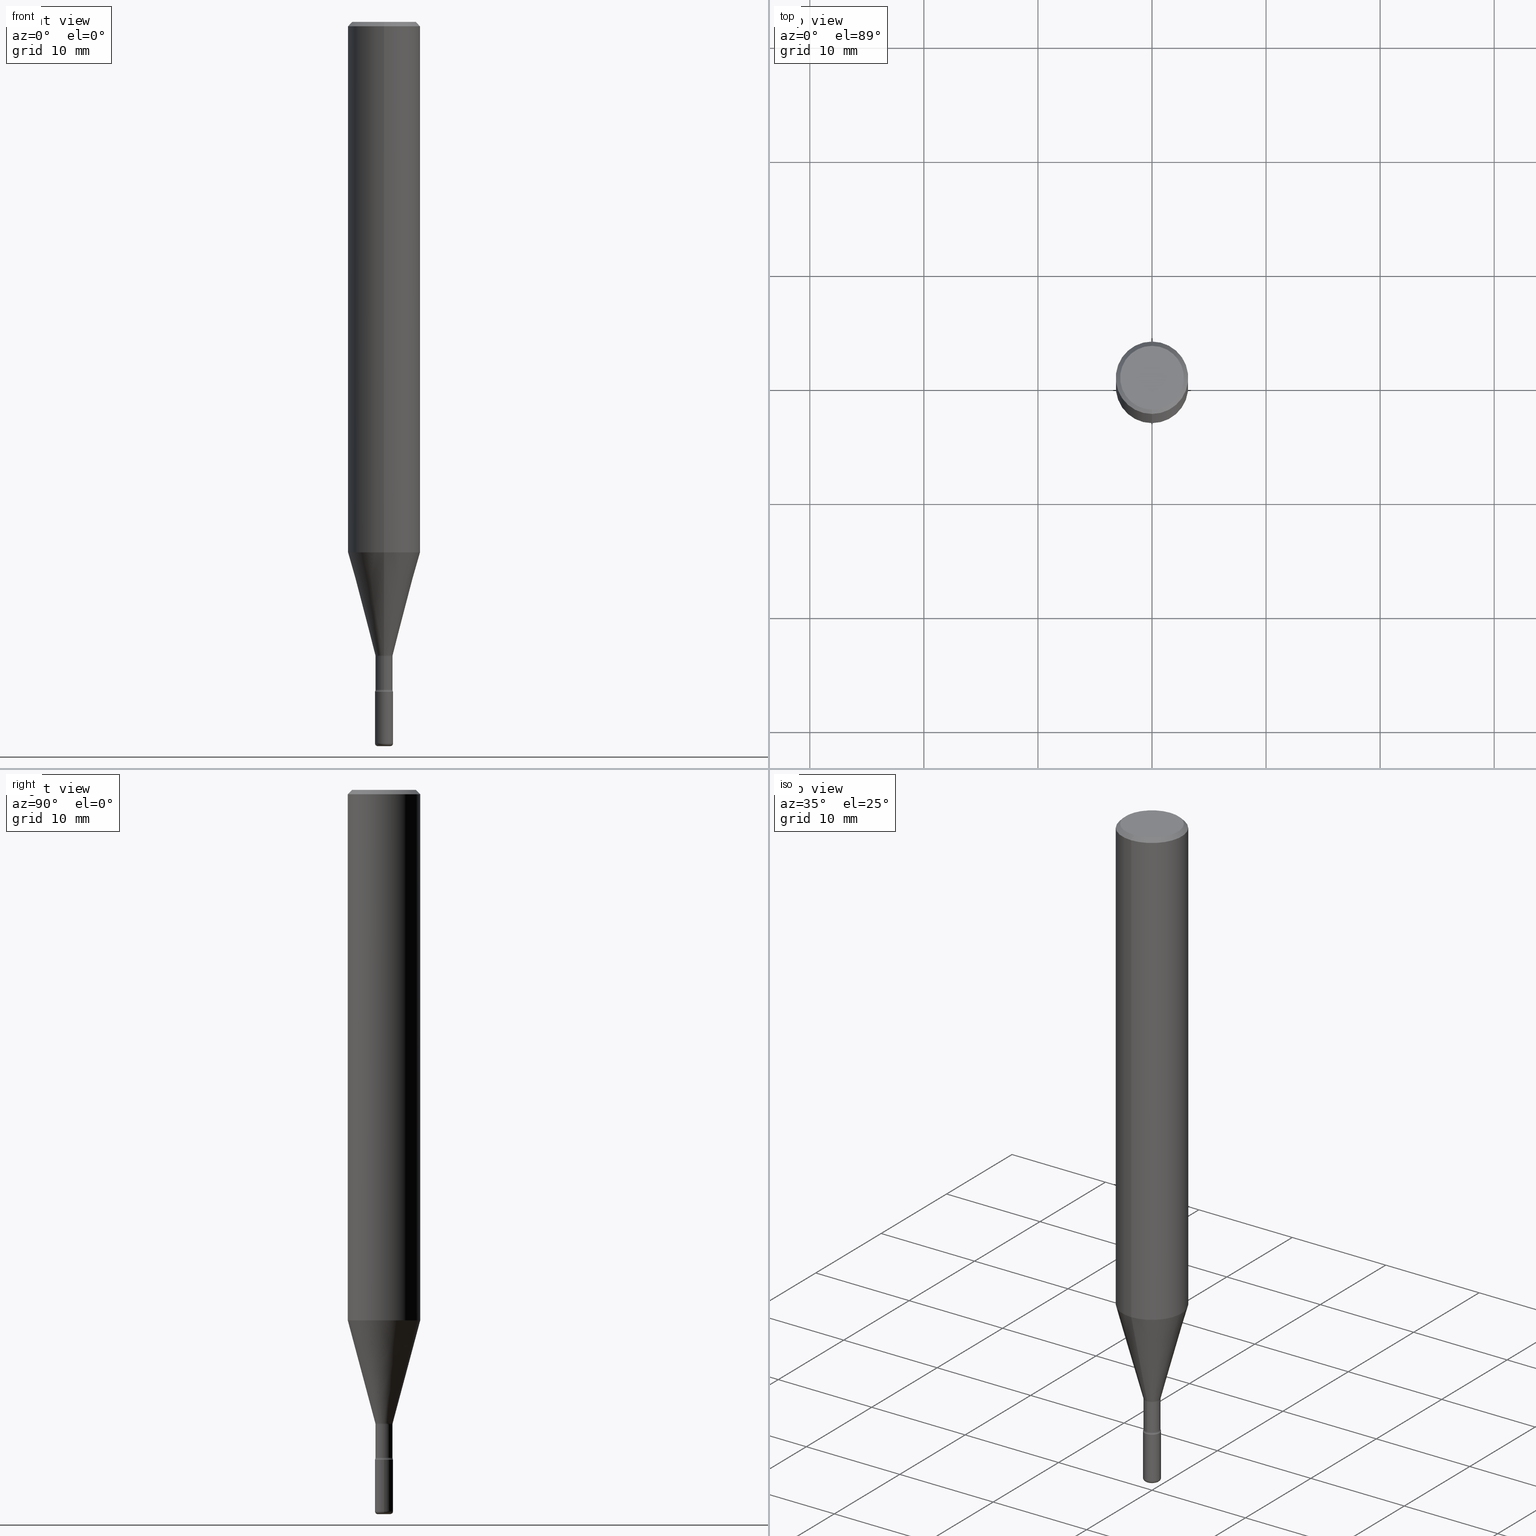
[diagram: canonical four-view strip — front | top / right | iso, engineering-drawing reading convention]
A machine part, canonical four-view strip (front | top / right | iso — engineering-drawing reading convention). The complete STEP part file that produces these views, byte-faithful:
ISO-10303-21;
HEADER;
FILE_DESCRIPTION (( 'STEP AP203' ),
    '1' );
FILE_NAME ('05287.STEP',
    '2024-03-06T20:01:47',
    ( '' ),
    ( '' ),
    'SwSTEP 2.0',
    'SolidWorks 2023',
    '' );
FILE_SCHEMA (( 'CONFIG_CONTROL_DESIGN' ));
ENDSEC;

DATA;
#1 = DIRECTION ( 'NONE',  ( -2.445468806185136597E-29, 3.491481338843145583E-15, 1.000000000000000000 ) ) ;
#2 = DIRECTION ( 'NONE',  ( -2.445452788277100287E-29, 3.491504277399136299E-15, 1.000000000000000000 ) ) ;
#3 = DATE_AND_TIME ( #314, #176 ) ;
#4 = EDGE_CURVE ( 'NONE', #197, #385, #112, .T. ) ;
#5 = CARTESIAN_POINT ( 'NONE',  ( -0.03125000000000000000, 2.220446049250313081E-16, -1.537167215704658057E-30 ) ) ;
#6 = CARTESIAN_POINT ( 'NONE',  ( 0.02124999999999999806, -8.877091304008698268E-15, -2.500000000000000000 ) ) ;
#7 = ORIENTED_EDGE ( 'NONE', *, *, #61, .T. ) ;
#8 = APPROVAL ( #435, 'UNSPECIFIED' ) ;
#9 = DIRECTION ( 'NONE',  ( 7.105427357601001859E-15, 1.000000000000000000, 0.000000000000000000 ) ) ;
#10 = CLOSED_SHELL ( 'NONE', ( #294, #504, #494, #441, #362, #93 ) ) ;
#11 = AXIS2_PLACEMENT_3D ( 'NONE', #299, #557, #565 ) ;
#12 = PLANE ( 'NONE',  #77 ) ;
#13 = CARTESIAN_POINT ( 'NONE',  ( 5.345986003927349393E-29, -7.632751320780443550E-15, -2.186092501787273434 ) ) ;
#14 = ORIENTED_EDGE ( 'NONE', *, *, #436, .T. ) ;
#15 = UNCERTAINTY_MEASURE_WITH_UNIT (LENGTH_MEASURE( 1.000000000000000082E-05 ), #202, 'distance_accuracy_value', 'NONE');
#16 = CARTESIAN_POINT ( 'NONE',  ( 5.653923879900035579E-29, -8.072304855405352780E-15, -2.312000000000000277 ) ) ;
#17 = DIRECTION ( 'NONE',  ( -2.445468806185136597E-29, 3.491481338843145583E-15, 1.000000000000000000 ) ) ;
#18 = TOROIDAL_SURFACE ( 'NONE', #250, 0.04440000000000000890, 0.01500000000000000291 ) ;
#19 = AXIS2_PLACEMENT_3D ( 'NONE', #290, #548, #550 ) ;
#20 = VECTOR ( 'NONE', #320, 39.37007874015748143 ) ;
#21 =( LENGTH_UNIT ( ) NAMED_UNIT ( * ) SI_UNIT ( $, .METRE. ) );
#22 = DIRECTION ( 'NONE',  ( 2.445452788277100287E-29, -3.491504277399136299E-15, -1.000000000000000000 ) ) ;
#23 = AXIS2_PLACEMENT_3D ( 'NONE', #532, #141, #454 ) ;
#24 = LOCAL_TIME ( 15, 1, 47.00000000000000000, #534 ) ;
#25 = LINE ( 'NONE', #343, #31 ) ;
#26 = DIRECTION ( 'NONE',  ( -2.445452788277100287E-29, 3.491504277399136299E-15, 1.000000000000000000 ) ) ;
#27 = ORIENTED_EDGE ( 'NONE', *, *, #552, .F. ) ;
#28 = ADVANCED_FACE ( 'NONE', ( #117 ), #390, .T. ) ;
#29 = CIRCLE ( 'NONE', #92, 0.03125000000000000000 ) ;
#30 = MANIFOLD_SOLID_BREP ( 'Body-Move/Copy2[2]', #262 ) ;
#31 = VECTOR ( 'NONE', #515, 39.37007874015748143 ) ;
#32 = AXIS2_PLACEMENT_3D ( 'NONE', #34, #430, #123 ) ;
#33 = EDGE_LOOP ( 'NONE', ( #219, #166, #279, #458 ) ) ;
#34 = CARTESIAN_POINT ( 'NONE',  ( 0.000000000000000000, 0.000000000000000000, 0.000000000000000000 ) ) ;
#35 = ADVANCED_FACE ( 'NONE', ( #523 ), #300, .T. ) ;
#36 = DIRECTION ( 'NONE',  ( -2.445452788277100287E-29, 3.491504277399136299E-15, 1.000000000000000000 ) ) ;
#37 = ORIENTED_EDGE ( 'NONE', *, *, #451, .T. ) ;
#38 = DIRECTION ( 'NONE',  ( -6.982962677686267499E-15, -1.000000000000000000, 0.000000000000000000 ) ) ;
#39 = FACE_OUTER_BOUND ( 'NONE', #291, .T. ) ;
#40 = EDGE_CURVE ( 'NONE', #448, #511, #527, .T. ) ;
#41 = VERTEX_POINT ( 'NONE', #480 ) ;
#42 = ORIENTED_EDGE ( 'NONE', *, *, #384, .T. ) ;
#43 = AXIS2_PLACEMENT_3D ( 'NONE', #50, #229, #408 ) ;
#44 = EDGE_CURVE ( 'NONE', #522, #469, #174, .T. ) ;
#45 = CIRCLE ( 'NONE', #466, 0.01000000000000035930 ) ;
#46 = DIRECTION ( 'NONE',  ( -6.982962677686265922E-15, -1.000000000000000000, 3.491504277399135904E-15 ) ) ;
#47 = PERSON_AND_ORGANIZATION ( #165, #492 ) ;
#48 = CARTESIAN_POINT ( 'NONE',  ( 2.088995643135258268E-16, 0.02939999999999235586, -2.189974787463811357 ) ) ;
#49 = ORIENTED_EDGE ( 'NONE', *, *, #44, .T. ) ;
#50 = CARTESIAN_POINT ( 'NONE',  ( 6.089217327400989947E-29, -8.693788533719431716E-15, -2.489999999999999769 ) ) ;
#51 = CARTESIAN_POINT ( 'NONE',  ( 0.03125000000000000000, -8.290522439083049403E-15, -2.312000000000000277 ) ) ;
#52 = SHAPE_DEFINITION_REPRESENTATION ( #456, #553 ) ;
#53 = ORIENTED_EDGE ( 'NONE', *, *, #150, .T. ) ;
#54 = LINE ( 'NONE', #531, #20 ) ;
#55 = CARTESIAN_POINT ( 'NONE',  ( -8.728703347107832402E-16, -0.1250000000000000000, 9.145114335661381006E-16 ) ) ;
#56 = CARTESIAN_POINT ( 'NONE',  ( 5.636276217332838897E-29, -8.047108670374602595E-15, -2.304783525791634702 ) ) ;
#57 = AXIS2_PLACEMENT_3D ( 'NONE', #418, #68, #347 ) ;
#58 = AXIS2_PLACEMENT_3D ( 'NONE', #566, #261, #434 ) ;
#59 = LINE ( 'NONE', #55, #196 ) ;
#60 = AXIS2_PLACEMENT_3D ( 'NONE', #255, #36, #346 ) ;
#61 = EDGE_CURVE ( 'NONE', #81, #74, #410, .T. ) ;
#62 = CARTESIAN_POINT ( 'NONE',  ( -2.052991027239226467E-16, -0.02940000000000764571, -2.189974787463811357 ) ) ;
#63 = CARTESIAN_POINT ( 'NONE',  ( 3.668179182415653390E-31, -5.237256416098709156E-17, -0.01500000000000001332 ) ) ;
#64 = ORIENTED_EDGE ( 'NONE', *, *, #248, .T. ) ;
#65 = LENGTH_MEASURE_WITH_UNIT ( LENGTH_MEASURE( 0.02539999999999999897 ), #21 );
#66 = DIRECTION ( 'NONE',  ( -2.445468806185136597E-29, 3.491481338843145583E-15, 1.000000000000000000 ) ) ;
#67 = ORIENTED_EDGE ( 'NONE', *, *, #140, .T. ) ;
#68 = DIRECTION ( 'NONE',  ( -2.445468806185136597E-29, 3.491481338843145583E-15, 1.000000000000000000 ) ) ;
#69 = DIRECTION ( 'NONE',  ( -6.982962677686265922E-15, -1.000000000000000000, 3.491504277399136299E-15 ) ) ;
#70 = ORIENTED_EDGE ( 'NONE', *, *, #217, .T. ) ;
#71 = CIRCLE ( 'NONE', #298, 0.1250000000000000000 ) ;
#72 = AXIS2_PLACEMENT_3D ( 'NONE', #13, #225, #318 ) ;
#73 = EDGE_LOOP ( 'NONE', ( #105, #350 ) ) ;
#74 = VERTEX_POINT ( 'NONE', #264 ) ;
#75 = ORIENTED_EDGE ( 'NONE', *, *, #476, .F. ) ;
#76 = CYLINDRICAL_SURFACE ( 'NONE', #58, 0.03125000000000000000 ) ;
#77 = AXIS2_PLACEMENT_3D ( 'NONE', #366, #537, #191 ) ;
#78 = AXIS2_PLACEMENT_3D ( 'NONE', #308, #311, #484 ) ;
#79 = EDGE_LOOP ( 'NONE', ( #14, #94 ) ) ;
#80 = AXIS2_PLACEMENT_3D ( 'NONE', #568, #352, #82 ) ;
#81 = VERTEX_POINT ( 'NONE', #167 ) ;
#82 = DIRECTION ( 'NONE',  ( -6.982962677686265133E-15, -1.000000000000000000, 0.000000000000000000 ) ) ;
#83 = PERSON_AND_ORGANIZATION_ROLE ( 'creator' ) ;
#84 = LINE ( 'NONE', #89, #465 ) ;
#85 = DIRECTION ( 'NONE',  ( 6.982962677686265922E-15, 1.000000000000000000, -3.483106191921935554E-15 ) ) ;
#86 = PRODUCT_DEFINITION_FORMATION_WITH_SPECIFIED_SOURCE ( 'ANY', '', #541, .NOT_KNOWN. ) ;
#87 = CARTESIAN_POINT ( 'NONE',  ( 6.089217327400989947E-29, -8.693788533719431716E-15, -2.489999999999999769 ) ) ;
#88 = DIRECTION ( 'NONE',  ( 7.105427357601001859E-15, 1.000000000000000000, 0.000000000000000000 ) ) ;
#89 = CARTESIAN_POINT ( 'NONE',  ( 2.088995643134694479E-16, 0.02940000000000000252, 3.754231731357114148E-16 ) ) ;
#90 = DIRECTION ( 'NONE',  ( -6.982962677686265922E-15, -1.000000000000000000, 3.491504277399135904E-15 ) ) ;
#91 = LINE ( 'NONE', #281, #440 ) ;
#92 = AXIS2_PLACEMENT_3D ( 'NONE', #401, #95, #368 ) ;
#93 = ADVANCED_FACE ( 'NONE', ( #306 ), #76, .T. ) ;
#94 = ORIENTED_EDGE ( 'NONE', *, *, #467, .T. ) ;
#95 = DIRECTION ( 'NONE',  ( -2.445468806185136597E-29, 3.491481338843145583E-15, 1.000000000000000000 ) ) ;
#96 = DIRECTION ( 'NONE',  ( -4.851104656540962697E-15, -0.7071067811865497932, -0.7071067811865452413 ) ) ;
#97 = CC_DESIGN_APPROVAL ( #353, ( #86 ) ) ;
#98 = CIRCLE ( 'NONE', #11, 0.1250000000000000000 ) ;
#99 = ADVANCED_FACE ( 'NONE', ( #39 ), #270, .T. ) ;
#100 = FACE_OUTER_BOUND ( 'NONE', #328, .T. ) ;
#101 = DIRECTION ( 'NONE',  ( 6.982962677686265922E-15, 1.000000000000000000, -3.491504277399136299E-15 ) ) ;
#102 = VERTEX_POINT ( 'NONE', #6 ) ;
#103 = DIRECTION ( 'NONE',  ( -6.982962677686265922E-15, -1.000000000000000000, 3.491504277399135904E-15 ) ) ;
#104 = CIRCLE ( 'NONE', #266, 0.02940000000000000946 ) ;
#105 = ORIENTED_EDGE ( 'NONE', *, *, #451, .F. ) ;
#106 = VECTOR ( 'NONE', #571, 39.37007874015748143 ) ;
#107 = FACE_OUTER_BOUND ( 'NONE', #374, .T. ) ;
#108 = CIRCLE ( 'NONE', #433, 0.03125000000000000000 ) ;
#109 = ADVANCED_FACE ( 'NONE', ( #234 ), #490, .T. ) ;
#110 = ORIENTED_EDGE ( 'NONE', *, *, #538, .F. ) ;
#111 = AXIS2_PLACEMENT_3D ( 'NONE', #307, #391, #118 ) ;
#112 = CIRCLE ( 'NONE', #80, 0.02939999999999999905 ) ;
#113 = ORIENTED_EDGE ( 'NONE', *, *, #510, .T. ) ;
#114 = EDGE_LOOP ( 'NONE', ( #7, #201, #425, #518 ) ) ;
#115 = ADVANCED_FACE ( 'NONE', ( #192 ), #383, .F. ) ;
#116 = AXIS2_PLACEMENT_3D ( 'NONE', #129, #313, #442 ) ;
#117 = FACE_OUTER_BOUND ( 'NONE', #121, .T. ) ;
#118 = DIRECTION ( 'NONE',  ( -6.982962677686266711E-15, -1.000000000000000000, 0.000000000000000000 ) ) ;
#119 = DIRECTION ( 'NONE',  ( -6.982962677686265922E-15, -1.000000000000000000, 0.000000000000000000 ) ) ;
#120 = COORDINATED_UNIVERSAL_TIME_OFFSET ( 5, 0, .BEHIND. ) ;
#121 = EDGE_LOOP ( 'NONE', ( #271, #70, #193, #172 ) ) ;
#122 = CARTESIAN_POINT ( 'NONE',  ( -1.169113584055446105E-44, 1.669184350826100908E-30, 4.780733988912460139E-16 ) ) ;
#123 = DIRECTION ( 'NONE',  ( 1.000000000000000000, 0.000000000000000000, 0.000000000000000000 ) ) ;
#124 = VERTEX_POINT ( 'NONE', #489 ) ;
#125 = ORIENTED_EDGE ( 'NONE', *, *, #327, .T. ) ;
#126 = CIRCLE ( 'NONE', #205, 0.03125000000000000000 ) ;
#127 = CIRCLE ( 'NONE', #319, 0.03125000000000000000 ) ;
#128 = DIRECTION ( 'NONE',  ( -6.982962677686265922E-15, -1.000000000000000000, 3.491504277399137482E-15 ) ) ;
#129 = CARTESIAN_POINT ( 'NONE',  ( -1.169113584055446105E-44, 1.669184350826100908E-30, 4.780733988912460139E-16 ) ) ;
#130 = SECURITY_CLASSIFICATION_LEVEL ( 'unclassified' ) ;
#131 = DIRECTION ( 'NONE',  ( 2.438088387897960049E-29, -3.491481338843145188E-15, -1.000000000000000000 ) ) ;
#132 = CIRCLE ( 'NONE', #212, 0.02124999999999999806 ) ;
#133 = DIRECTION ( 'NONE',  ( -2.445452788277100287E-29, 3.491504277399136299E-15, 1.000000000000000000 ) ) ;
#134 = COORDINATED_UNIVERSAL_TIME_OFFSET ( 5, 0, .BEHIND. ) ;
#135 = EDGE_LOOP ( 'NONE', ( #371, #67, #125, #470 ) ) ;
#136 = FACE_OUTER_BOUND ( 'NONE', #275, .T. ) ;
#137 = DIRECTION ( 'NONE',  ( -2.445468806185136597E-29, 3.491481338843145583E-15, 1.000000000000000000 ) ) ;
#138 = APPROVAL_DATE_TIME ( #403, #8 ) ;
#139 = DIRECTION ( 'NONE',  ( 1.000000000000000000, -7.105427357601001070E-15, 4.926315789458373769E-29 ) ) ;
#140 = EDGE_CURVE ( 'NONE', #124, #253, #163, .T. ) ;
#141 = DIRECTION ( 'NONE',  ( -2.445452788277100287E-29, 3.491504277399136299E-15, 1.000000000000000000 ) ) ;
#142 = DIRECTION ( 'NONE',  ( -2.445452788277100006E-29, 3.491504277399136299E-15, 1.000000000000000000 ) ) ;
#143 = EDGE_CURVE ( 'NONE', #237, #198, #501, .T. ) ;
#144 = ORIENTED_EDGE ( 'NONE', *, *, #239, .F. ) ;
#145 = DIRECTION ( 'NONE',  ( -6.982962677686265922E-15, -1.000000000000000000, 3.483106191921935554E-15 ) ) ;
#146 = AXIS2_PLACEMENT_3D ( 'NONE', #87, #137, #415 ) ;
#147 = FACE_OUTER_BOUND ( 'NONE', #400, .T. ) ;
#148 = VERTEX_POINT ( 'NONE', #405 ) ;
#149 = DIRECTION ( 'NONE',  ( -2.445452788277100287E-29, 3.491504277399136299E-15, 1.000000000000000000 ) ) ;
#150 = EDGE_CURVE ( 'NONE', #253, #124, #252, .T. ) ;
#151 = APPROVAL ( #208, 'UNSPECIFIED' ) ;
#152 = APPLICATION_CONTEXT ( 'configuration controlled 3d designs of mechanical parts and assemblies' ) ;
#153 = CYLINDRICAL_SURFACE ( 'NONE', #184, 0.1250000000000000000 ) ;
#154 = TOROIDAL_SURFACE ( 'NONE', #43, 0.02124999999999999806, 0.01000000000000035583 ) ;
#155 = AXIS2_PLACEMENT_3D ( 'NONE', #388, #477, #119 ) ;
#156 = ORIENTED_EDGE ( 'NONE', *, *, #40, .T. ) ;
#157 = ORIENTED_EDGE ( 'NONE', *, *, #567, .T. ) ;
#158 = ORIENTED_EDGE ( 'NONE', *, *, #316, .F. ) ;
#159 = DIRECTION ( 'NONE',  ( -1.000000000000000000, 6.982962677686265922E-15, -4.883557194083112340E-29 ) ) ;
#160 = AXIS2_PLACEMENT_3D ( 'NONE', #402, #2, #181 ) ;
#161 = CONICAL_SURFACE ( 'NONE', #269, 0.1250000000000000000, 0.7853981633974480570 ) ;
#162 = ORIENTED_EDGE ( 'NONE', *, *, #222, .F. ) ;
#163 = CIRCLE ( 'NONE', #146, 0.03125000000000000000 ) ;
#164 = DIRECTION ( 'NONE',  ( -2.445452788277100287E-29, 3.491504277399136299E-15, 1.000000000000000000 ) ) ;
#165 = PERSON ( 'UNSPECIFIED', 'UNSPECIFIED', 'UNSPECIFIED', ('UNSPECIFIED'), ('UNSPECIFIED'), ('UNSPECIFIED') ) ;
#166 = ORIENTED_EDGE ( 'NONE', *, *, #239, .T. ) ;
#167 = CARTESIAN_POINT ( 'NONE',  ( -2.088681829733692852E-16, -0.02991111260567161020, -2.186092501787273434 ) ) ;
#168 = CC_DESIGN_DATE_AND_TIME_ASSIGNMENT ( #3, #182, ( #258 ) ) ;
#169 = ORIENTED_EDGE ( 'NONE', *, *, #552, .T. ) ;
#170 = AXIS2_PLACEMENT_3D ( 'NONE', #503, #463, #101 ) ;
#171 = ORIENTED_EDGE ( 'NONE', *, *, #379, .F. ) ;
#172 = ORIENTED_EDGE ( 'NONE', *, *, #384, .F. ) ;
#173 = PERSON_AND_ORGANIZATION ( #165, #492 ) ;
#174 = CIRCLE ( 'NONE', #78, 0.1100000000000000006 ) ;
#175 = ORIENTED_EDGE ( 'NONE', *, *, #485, .T. ) ;
#176 = LOCAL_TIME ( 15, 1, 47.00000000000000000, #268 ) ;
#177 = CARTESIAN_POINT ( 'NONE',  ( 5.355515029074675040E-29, -7.646256102966880263E-15, -2.189974787463811357 ) ) ;
#178 = ADVANCED_FACE ( 'NONE', ( #367 ), #321, .F. ) ;
#179 = APPROVAL_DATE_TIME ( #259, #151 ) ;
#180 = CARTESIAN_POINT ( 'NONE',  ( -8.061085147381546509E-16, -0.1100000000000000006, 3.705968789644431763E-16 ) ) ;
#181 = DIRECTION ( 'NONE',  ( -6.982962677686265922E-15, -1.000000000000000000, 4.370956789862821150E-15 ) ) ;
#182 = DATE_TIME_ROLE ( 'creation_date' ) ;
#183 = ORIENTED_EDGE ( 'NONE', *, *, #4, .F. ) ;
#184 = AXIS2_PLACEMENT_3D ( 'NONE', #417, #373, #69 ) ;
#185 = CARTESIAN_POINT ( 'NONE',  ( 1.483879569008942895E-16, 0.02124999999999126893, -2.500000000000000000 ) ) ;
#186 = CYLINDRICAL_SURFACE ( 'NONE', #116, 0.02940000000000000252 ) ;
#187 = VERTEX_POINT ( 'NONE', #364 ) ;
#188 = VECTOR ( 'NONE', #358, 39.37007874015748854 ) ;
#189 = LINE ( 'NONE', #232, #188 ) ;
#190 = CARTESIAN_POINT ( 'NONE',  ( 8.881784197001251337E-16, 0.1250000000000000000, 4.163536421635405055E-17 ) ) ;
#191 = DIRECTION ( 'NONE',  ( 1.000000000000000000, -6.982962677686265922E-15, 4.876176775795935793E-29 ) ) ;
#192 = FACE_OUTER_BOUND ( 'NONE', #282, .T. ) ;
#193 = ORIENTED_EDGE ( 'NONE', *, *, #206, .F. ) ;
#194 = DIRECTION ( 'NONE',  ( -2.445468806185136597E-29, 3.491481338843145583E-15, 1.000000000000000000 ) ) ;
#195 = FACE_OUTER_BOUND ( 'NONE', #411, .T. ) ;
#196 = VECTOR ( 'NONE', #439, 39.37007874015748143 ) ;
#197 = VERTEX_POINT ( 'NONE', #48 ) ;
#198 = VERTEX_POINT ( 'NONE', #539 ) ;
#199 = LINE ( 'NONE', #334, #323 ) ;
#200 = CC_DESIGN_SECURITY_CLASSIFICATION ( #233, ( #86 ) ) ;
#201 = ORIENTED_EDGE ( 'NONE', *, *, #476, .T. ) ;
#202 =( CONVERSION_BASED_UNIT ( 'INCH', #65 ) LENGTH_UNIT ( ) NAMED_UNIT ( #491 ) );
#203 = CYLINDRICAL_SURFACE ( 'NONE', #513, 0.03125000000000000000 ) ;
#204 =( GEOMETRIC_REPRESENTATION_CONTEXT ( 3 ) GLOBAL_UNCERTAINTY_ASSIGNED_CONTEXT ( ( #15 ) ) GLOBAL_UNIT_ASSIGNED_CONTEXT ( ( #202, #215, #472 ) ) REPRESENTATION_CONTEXT ( 'NONE', 'WORKASPACE' ) );
#205 = AXIS2_PLACEMENT_3D ( 'NONE', #243, #164, #560 ) ;
#206 = EDGE_CURVE ( 'NONE', #385, #197, #570, .T. ) ;
#207 = ORIENTED_EDGE ( 'NONE', *, *, #412, .T. ) ;
#208 = APPROVAL_STATUS ( 'not_yet_approved' ) ;
#209 = DIRECTION ( 'NONE',  ( -2.445452788277100287E-29, 3.491504277399136299E-15, 1.000000000000000000 ) ) ;
#210 = EDGE_CURVE ( 'NONE', #74, #81, #365, .T. ) ;
#211 = APPLICATION_PROTOCOL_DEFINITION ( 'international standard', 'config_control_design', 1994, #152 ) ;
#212 = AXIS2_PLACEMENT_3D ( 'NONE', #293, #17, #419 ) ;
#213 = AXIS2_PLACEMENT_3D ( 'NONE', #276, #194, #449 ) ;
#214 = ORIENTED_EDGE ( 'NONE', *, *, #526, .F. ) ;
#215 =( NAMED_UNIT ( * ) PLANE_ANGLE_UNIT ( ) SI_UNIT ( $, .RADIAN. ) );
#216 = PRODUCT_RELATED_PRODUCT_CATEGORY ( 'detail', '', ( #541 ) ) ;
#217 = EDGE_CURVE ( 'NONE', #448, #197, #84, .T. ) ;
#218 = CARTESIAN_POINT ( 'NONE',  ( 5.345986003927349393E-29, -7.632751320780443550E-15, -2.186092501787273434 ) ) ;
#219 = ORIENTED_EDGE ( 'NONE', *, *, #210, .F. ) ;
#220 = AXIS2_PLACEMENT_3D ( 'NONE', #63, #22, #236 ) ;
#221 = ORIENTED_EDGE ( 'NONE', *, *, #519, .T. ) ;
#222 = EDGE_CURVE ( 'NONE', #469, #148, #91, .T. ) ;
#223 = DIRECTION ( 'NONE',  ( -6.982962677686265922E-15, -1.000000000000000000, 0.000000000000000000 ) ) ;
#224 = DIRECTION ( 'NONE',  ( -1.000000000000000000, 7.105427357600962416E-15, 0.000000000000000000 ) ) ;
#225 = DIRECTION ( 'NONE',  ( -2.445452788277100287E-29, 3.491504277399136299E-15, 1.000000000000000000 ) ) ;
#226 = CARTESIAN_POINT ( 'NONE',  ( -2.088681829733692852E-16, -0.02991111260567161020, -2.186092501787273434 ) ) ;
#227 = FACE_OUTER_BOUND ( 'NONE', #507, .T. ) ;
#228 = PERSON_AND_ORGANIZATION ( #165, #492 ) ;
#229 = DIRECTION ( 'NONE',  ( -2.445468806185136597E-29, 3.491481338843145583E-15, 1.000000000000000000 ) ) ;
#230 = CARTESIAN_POINT ( 'NONE',  ( -8.728703347107386696E-16, -0.1250000000000064115, -1.831215942796415863 ) ) ;
#231 = EDGE_CURVE ( 'NONE', #237, #148, #59, .T. ) ;
#232 = CARTESIAN_POINT ( 'NONE',  ( 2.125312378046224579E-16, 0.02991111260565634464, -2.186092501787273434 ) ) ;
#233 = SECURITY_CLASSIFICATION ( '', '', #130 ) ;
#234 = FACE_OUTER_BOUND ( 'NONE', #114, .T. ) ;
#235 = CARTESIAN_POINT ( 'NONE',  ( 3.668179182415653390E-31, -5.237256416098709156E-17, -0.01500000000000001332 ) ) ;
#236 = DIRECTION ( 'NONE',  ( 6.982962677686265922E-15, 1.000000000000000000, -3.483106191921935554E-15 ) ) ;
#237 = VERTEX_POINT ( 'NONE', #230 ) ;
#238 = CARTESIAN_POINT ( 'NONE',  ( 2.220446049250877609E-16, 0.03124999999999192313, -2.312000000000000277 ) ) ;
#239 = EDGE_CURVE ( 'NONE', #74, #197, #292, .T. ) ;
#240 = DIRECTION ( 'NONE',  ( 1.000000000000000000, -6.982962677686266711E-15, 4.876176775795935793E-29 ) ) ;
#241 = AXIS2_PLACEMENT_3D ( 'NONE', #461, #26, #103 ) ;
#242 = CIRCLE ( 'NONE', #213, 0.02124999999999999806 ) ;
#243 = CARTESIAN_POINT ( 'NONE',  ( 5.653886846496656107E-29, -8.072357889346804703E-15, -2.312000000000000277 ) ) ;
#244 = FACE_OUTER_BOUND ( 'NONE', #263, .T. ) ;
#245 = APPROVAL_PERSON_ORGANIZATION ( #389, #151, #386 ) ;
#246 = ORIENTED_EDGE ( 'NONE', *, *, #412, .F. ) ;
#247 = VERTEX_POINT ( 'NONE', #51 ) ;
#248 = EDGE_CURVE ( 'NONE', #198, #187, #398, .T. ) ;
#249 = ORIENTED_EDGE ( 'NONE', *, *, #217, .F. ) ;
#250 = AXIS2_PLACEMENT_3D ( 'NONE', #56, #289, #90 ) ;
#251 = CC_DESIGN_PERSON_AND_ORGANIZATION_ASSIGNMENT ( #443, #393, ( #233 ) ) ;
#252 = CIRCLE ( 'NONE', #473, 0.03125000000000000000 ) ;
#253 = VERTEX_POINT ( 'NONE', #529 ) ;
#254 = PERSON_AND_ORGANIZATION ( #165, #492 ) ;
#255 = CARTESIAN_POINT ( 'NONE',  ( -1.169113584055446105E-44, 1.669184350826100908E-30, 4.780733988912460139E-16 ) ) ;
#256 = DIRECTION ( 'NONE',  ( -6.982962677686266711E-15, -1.000000000000000000, 3.491481338843145583E-15 ) ) ;
#257 = ORIENTED_EDGE ( 'NONE', *, *, #349, .F. ) ;
#258 = PRODUCT_DEFINITION ( 'UNKNOWN', '', #86, #558 ) ;
#259 = DATE_AND_TIME ( #305, #444 ) ;
#260 = VECTOR ( 'NONE', #363, 39.37007874015748143 ) ;
#261 = DIRECTION ( 'NONE',  ( -2.445468806185136597E-29, 3.491481338843145583E-15, 1.000000000000000000 ) ) ;
#262 = CLOSED_SHELL ( 'NONE', ( #303, #28, #369, #312, #344, #109, #99, #35, #457, #361, #178, #296, #278, #115 ) ) ;
#263 = EDGE_LOOP ( 'NONE', ( #246, #158, #169, #113 ) ) ;
#264 = CARTESIAN_POINT ( 'NONE',  ( 5.503548287523965372E-16, 0.02991111260565634811, -2.186092501787273434 ) ) ;
#265 = PERSON_AND_ORGANIZATION_ROLE ( 'creator' ) ;
#266 = AXIS2_PLACEMENT_3D ( 'NONE', #377, #149, #380 ) ;
#267 = DIRECTION ( 'NONE',  ( 1.000000000000000000, -7.105427357601001070E-15, 4.926315789458373769E-29 ) ) ;
#268 = COORDINATED_UNIVERSAL_TIME_OFFSET ( 5, 0, .BEHIND. ) ;
#269 = AXIS2_PLACEMENT_3D ( 'NONE', #235, #272, #85 ) ;
#270 = CONICAL_SURFACE ( 'NONE', #455, 0.02991111260566397742, 0.2617993877991499629 ) ;
#271 = ORIENTED_EDGE ( 'NONE', *, *, #316, .T. ) ;
#272 = DIRECTION ( 'NONE',  ( 2.445452788277100287E-29, -3.491504277399136299E-15, -1.000000000000000000 ) ) ;
#273 = DIRECTION ( 'NONE',  ( -2.445468806185136597E-29, 3.491481338843145583E-15, 1.000000000000000000 ) ) ;
#274 = DATE_AND_TIME ( #351, #355 ) ;
#275 = EDGE_LOOP ( 'NONE', ( #471, #207, #535, #27 ) ) ;
#276 = CARTESIAN_POINT ( 'NONE',  ( 6.113672015462842613E-29, -8.728703347107864943E-15, -2.500000000000000000 ) ) ;
#277 = CARTESIAN_POINT ( 'NONE',  ( 2.182175836777523369E-16, 0.03124999999999192660, -2.312000000000000277 ) ) ;
#278 = ADVANCED_FACE ( 'NONE', ( #227 ), #186, .T. ) ;
#279 = ORIENTED_EDGE ( 'NONE', *, *, #4, .T. ) ;
#280 = LINE ( 'NONE', #226, #543 ) ;
#281 = CARTESIAN_POINT ( 'NONE',  ( -8.575622497214409523E-16, -0.1250000000000000555, -0.01499999999999957791 ) ) ;
#282 = EDGE_LOOP ( 'NONE', ( #144, #338, #221, #516 ) ) ;
#283 = AXIS2_PLACEMENT_3D ( 'NONE', #177, #133, #46 ) ;
#284 = FACE_OUTER_BOUND ( 'NONE', #73, .T. ) ;
#285 = AXIS2_PLACEMENT_3D ( 'NONE', #428, #256, #478 ) ;
#286 = FACE_OUTER_BOUND ( 'NONE', #33, .T. ) ;
#287 = AXIS2_PLACEMENT_3D ( 'NONE', #505, #159, #38 ) ;
#288 = EDGE_CURVE ( 'NONE', #198, #237, #533, .T. ) ;
#289 = DIRECTION ( 'NONE',  ( -2.445452788277100287E-29, 3.491504277399136299E-15, 1.000000000000000000 ) ) ;
#290 = CARTESIAN_POINT ( 'NONE',  ( 5.636276217332838897E-29, -8.047108670374602595E-15, -2.304783525791634702 ) ) ;
#291 = EDGE_LOOP ( 'NONE', ( #75, #559, #381, #437 ) ) ;
#292 = CIRCLE ( 'NONE', #315, 0.01500000000000002720 ) ;
#293 = CARTESIAN_POINT ( 'NONE',  ( 6.113672015462842613E-29, -8.728703347107864943E-15, -2.500000000000000000 ) ) ;
#294 = ADVANCED_FACE ( 'NONE', ( #359 ), #203, .T. ) ;
#295 = ORIENTED_EDGE ( 'NONE', *, *, #140, .F. ) ;
#296 = ADVANCED_FACE ( 'NONE', ( #244 ), #372, .F. ) ;
#297 = ORIENTED_EDGE ( 'NONE', *, *, #248, .F. ) ;
#298 = AXIS2_PLACEMENT_3D ( 'NONE', #544, #462, #145 ) ;
#299 = CARTESIAN_POINT ( 'NONE',  ( 3.668179182415653390E-31, -5.237256416098709156E-17, -0.01500000000000001332 ) ) ;
#300 = CYLINDRICAL_SURFACE ( 'NONE', #60, 0.1250000000000000000 ) ;
#301 = CC_DESIGN_APPROVAL ( #151, ( #258 ) ) ;
#302 = DIRECTION ( 'NONE',  ( -6.982962677686265922E-15, -1.000000000000000000, 0.000000000000000000 ) ) ;
#303 = ADVANCED_FACE ( 'NONE', ( #286 ), #340, .F. ) ;
#304 = VERTEX_POINT ( 'NONE', #336 ) ;
#305 = CALENDAR_DATE ( 2024, 6, 3 ) ;
#306 = FACE_OUTER_BOUND ( 'NONE', #135, .T. ) ;
#307 = CARTESIAN_POINT ( 'NONE',  ( -3.100435428892139208E-16, -0.04440000000000805802, -2.304783525791634702 ) ) ;
#308 = CARTESIAN_POINT ( 'NONE',  ( 3.292914702305876277E-46, -4.703661131891596783E-32, -1.346859154946182800E-17 ) ) ;
#309 = EDGE_CURVE ( 'NONE', #304, #102, #132, .T. ) ;
#310 = APPROVAL_ROLE ( '' ) ;
#311 = DIRECTION ( 'NONE',  ( -2.445452788277100287E-29, 3.491504277399136299E-15, 1.000000000000000000 ) ) ;
#312 = ADVANCED_FACE ( 'NONE', ( #147 ), #424, .T. ) ;
#313 = DIRECTION ( 'NONE',  ( -2.445452788277100287E-29, 3.491504277399136299E-15, 1.000000000000000000 ) ) ;
#314 = CALENDAR_DATE ( 2024, 6, 3 ) ;
#315 = AXIS2_PLACEMENT_3D ( 'NONE', #409, #267, #9 ) ;
#316 = EDGE_CURVE ( 'NONE', #511, #448, #104, .T. ) ;
#317 = AXIS2_PLACEMENT_3D ( 'NONE', #499, #139, #88 ) ;
#318 = DIRECTION ( 'NONE',  ( -6.982962677686265922E-15, -1.000000000000000000, 0.000000000000000000 ) ) ;
#319 = AXIS2_PLACEMENT_3D ( 'NONE', #432, #339, #302 ) ;
#320 = DIRECTION ( 'NONE',  ( -2.445452788277100006E-29, 3.491504277399136299E-15, 1.000000000000000000 ) ) ;
#321 = PLANE ( 'NONE',  #345 ) ;
#322 = CARTESIAN_POINT ( 'NONE',  ( 5.345986003927349393E-29, -7.632751320780443550E-15, -2.186092501787273434 ) ) ;
#323 = VECTOR ( 'NONE', #506, 39.37007874015748143 ) ;
#324 = CIRCLE ( 'NONE', #317, 0.01500000000000000291 ) ;
#325 = CARTESIAN_POINT ( 'NONE',  ( -0.02124999999999999806, -8.542798202370410489E-15, -2.489999999999999769 ) ) ;
#326 = DIRECTION ( 'NONE',  ( 1.000000000000000000, -6.982962677686294321E-15, 0.000000000000000000 ) ) ;
#327 = EDGE_CURVE ( 'NONE', #253, #247, #199, .T. ) ;
#328 = EDGE_LOOP ( 'NONE', ( #162, #396, #382, #549 ) ) ;
#329 = FACE_OUTER_BOUND ( 'NONE', #464, .T. ) ;
#330 = PLANE ( 'NONE',  #170 ) ;
#331 = CIRCLE ( 'NONE', #287, 0.01500000000000002720 ) ;
#332 = ORIENTED_EDGE ( 'NONE', *, *, #222, .T. ) ;
#333 = PERSON_AND_ORGANIZATION_ROLE ( 'design_owner' ) ;
#334 = CARTESIAN_POINT ( 'NONE',  ( 0.03125000000000000000, -2.182175836776958347E-16, 1.523805242436229935E-30 ) ) ;
#335 = ORIENTED_EDGE ( 'NONE', *, *, #349, .T. ) ;
#336 = CARTESIAN_POINT ( 'NONE',  ( -0.02124999999999999806, -8.524728472276621273E-15, -2.500000000000000000 ) ) ;
#337 = ORIENTED_EDGE ( 'NONE', *, *, #327, .F. ) ;
#338 = ORIENTED_EDGE ( 'NONE', *, *, #61, .F. ) ;
#339 = DIRECTION ( 'NONE',  ( -2.445452788277100287E-29, 3.491504277399136299E-15, 1.000000000000000000 ) ) ;
#340 = TOROIDAL_SURFACE ( 'NONE', #241, 0.04440000000000000197, 0.01500000000000002720 ) ;
#341 = ORIENTED_EDGE ( 'NONE', *, *, #526, .T. ) ;
#342 = AXIS2_PLACEMENT_3D ( 'NONE', #185, #131, #493 ) ;
#343 = CARTESIAN_POINT ( 'NONE',  ( 8.728703347107836346E-16, 0.1249999999999999445, -0.01500000000000044874 ) ) ;
#344 = ADVANCED_FACE ( 'NONE', ( #195 ), #153, .T. ) ;
#345 = AXIS2_PLACEMENT_3D ( 'NONE', #277, #142, #450 ) ;
#346 = DIRECTION ( 'NONE',  ( -6.982962677686265922E-15, -1.000000000000000000, 3.491504277399136299E-15 ) ) ;
#347 = DIRECTION ( 'NONE',  ( 1.000000000000000000, -6.982962677686276177E-15, 4.883557194083116264E-29 ) ) ;
#348 = ORIENTED_EDGE ( 'NONE', *, *, #231, .F. ) ;
#349 = EDGE_CURVE ( 'NONE', #469, #522, #508, .T. ) ;
#350 = ORIENTED_EDGE ( 'NONE', *, *, #309, .F. ) ;
#351 = CALENDAR_DATE ( 2024, 6, 3 ) ;
#352 = DIRECTION ( 'NONE',  ( -2.445452788277100287E-29, 3.491504277399136299E-15, 1.000000000000000000 ) ) ;
#353 = APPROVAL ( #524, 'UNSPECIFIED' ) ;
#354 = DATE_TIME_ROLE ( 'classification_date' ) ;
#355 = LOCAL_TIME ( 15, 1, 47.00000000000000000, #530 ) ;
#356 = ORIENTED_EDGE ( 'NONE', *, *, #436, .F. ) ;
#357 = CARTESIAN_POINT ( 'NONE',  ( 5.355479950259927561E-29, -7.646306337826161310E-15, -2.189974787463811357 ) ) ;
#358 = DIRECTION ( 'NONE',  ( 1.839019923739597949E-15, 0.2588190451025246253, 0.9659258262890670910 ) ) ;
#359 = FACE_OUTER_BOUND ( 'NONE', #438, .T. ) ;
#360 = APPROVAL_DATE_TIME ( #274, #353 ) ;
#361 = ADVANCED_FACE ( 'NONE', ( #107 ), #330, .F. ) ;
#362 = ADVANCED_FACE ( 'NONE', ( #329 ), #154, .T. ) ;
#363 = DIRECTION ( 'NONE',  ( -2.445468806185136877E-29, 3.491481338843145188E-15, 1.000000000000000000 ) ) ;
#364 = CARTESIAN_POINT ( 'NONE',  ( 8.881784197001701974E-16, 0.1249999999999999445, -0.01500000000000044874 ) ) ;
#365 = CIRCLE ( 'NONE', #387, 0.02991111260566397742 ) ;
#366 = CARTESIAN_POINT ( 'NONE',  ( 5.653923879900035579E-29, -8.072304855405352780E-15, -2.312000000000000277 ) ) ;
#367 = FACE_OUTER_BOUND ( 'NONE', #561, .T. ) ;
#368 = DIRECTION ( 'NONE',  ( 1.000000000000000000, -6.982962677686262766E-15, 0.000000000000000000 ) ) ;
#369 = ADVANCED_FACE ( 'NONE', ( #136 ), #18, .F. ) ;
#370 = DIRECTION ( 'NONE',  ( -2.445452788277100287E-29, 3.491504277399136299E-15, 1.000000000000000000 ) ) ;
#371 = ORIENTED_EDGE ( 'NONE', *, *, #485, .F. ) ;
#372 = TOROIDAL_SURFACE ( 'NONE', #19, 0.04440000000000000890, 0.01500000000000000291 ) ;
#373 = DIRECTION ( 'NONE',  ( -2.445452788277100287E-29, 3.491504277399136299E-15, 1.000000000000000000 ) ) ;
#374 = EDGE_LOOP ( 'NONE', ( #49, #335 ) ) ;
#375 = APPLICATION_PROTOCOL_DEFINITION ( 'international standard', 'config_control_design', 1994, #517 ) ;
#376 = CC_DESIGN_APPROVAL ( #8, ( #233 ) ) ;
#377 = CARTESIAN_POINT ( 'NONE',  ( 5.636239299522279399E-29, -8.047161538780556045E-15, -2.304783525791634702 ) ) ;
#378 = ORIENTED_EDGE ( 'NONE', *, *, #309, .T. ) ;
#379 = EDGE_CURVE ( 'NONE', #187, #148, #71, .T. ) ;
#380 = DIRECTION ( 'NONE',  ( -6.982962677686265133E-15, -1.000000000000000000, 0.000000000000000000 ) ) ;
#381 = ORIENTED_EDGE ( 'NONE', *, *, #422, .T. ) ;
#382 = ORIENTED_EDGE ( 'NONE', *, *, #538, .T. ) ;
#383 = TOROIDAL_SURFACE ( 'NONE', #283, 0.04440000000000000197, 0.01500000000000002720 ) ;
#384 = EDGE_CURVE ( 'NONE', #511, #385, #54, .T. ) ;
#385 = VERTEX_POINT ( 'NONE', #62 ) ;
#386 = APPROVAL_ROLE ( '' ) ;
#387 = AXIS2_PLACEMENT_3D ( 'NONE', #322, #495, #446 ) ;
#388 = CARTESIAN_POINT ( 'NONE',  ( 5.345986003927349393E-29, -7.632751320780443550E-15, -2.186092501787273434 ) ) ;
#389 = PERSON_AND_ORGANIZATION ( #165, #492 ) ;
#390 = CYLINDRICAL_SURFACE ( 'NONE', #556, 0.02940000000000000252 ) ;
#391 = DIRECTION ( 'NONE',  ( -1.000000000000000000, 6.982962677686265922E-15, -4.883557194083112340E-29 ) ) ;
#392 = DIRECTION ( 'NONE',  ( -6.982962677686265133E-15, -1.000000000000000000, 0.000000000000000000 ) ) ;
#393 = PERSON_AND_ORGANIZATION_ROLE ( 'classification_officer' ) ;
#394 = EDGE_CURVE ( 'NONE', #304, #124, #45, .T. ) ;
#395 = CC_DESIGN_PERSON_AND_ORGANIZATION_ASSIGNMENT ( #483, #83, ( #258 ) ) ;
#396 = ORIENTED_EDGE ( 'NONE', *, *, #44, .F. ) ;
#397 = ORIENTED_EDGE ( 'NONE', *, *, #394, .F. ) ;
#398 = LINE ( 'NONE', #190, #106 ) ;
#399 = CALENDAR_DATE ( 2024, 6, 3 ) ;
#400 = EDGE_LOOP ( 'NONE', ( #257, #332, #341, #110 ) ) ;
#401 = CARTESIAN_POINT ( 'NONE',  ( 5.653923879900035579E-29, -8.072304855405352780E-15, -2.312000000000000277 ) ) ;
#402 = CARTESIAN_POINT ( 'NONE',  ( 4.478152133248975156E-29, -6.393698297115179896E-15, -1.831215942796416307 ) ) ;
#403 = DATE_AND_TIME ( #487, #427 ) ;
#404 = DIRECTION ( 'NONE',  ( 1.000000000000000000, -6.982962677686262766E-15, 0.000000000000000000 ) ) ;
#405 = CARTESIAN_POINT ( 'NONE',  ( -8.728703347107828458E-16, -0.1250000000000000555, -0.01499999999999957791 ) ) ;
#406 = DATE_AND_TIME ( #399, #24 ) ;
#407 = VERTEX_POINT ( 'NONE', #460 ) ;
#408 = DIRECTION ( 'NONE',  ( 1.000000000000000000, -6.982962677686276177E-15, 4.883557194083116264E-29 ) ) ;
#409 = CARTESIAN_POINT ( 'NONE',  ( 3.154809746775379911E-16, 0.04439999999999235530, -2.189974787463811357 ) ) ;
#410 = CIRCLE ( 'NONE', #155, 0.02991111260566397742 ) ;
#411 = EDGE_LOOP ( 'NONE', ( #528, #64, #214, #348 ) ) ;
#412 = EDGE_CURVE ( 'NONE', #448, #520, #324, .T. ) ;
#413 = FACE_OUTER_BOUND ( 'NONE', #79, .T. ) ;
#414 = MANIFOLD_SOLID_BREP ( 'Body-Move/Copy2[1]', #10 ) ;
#415 = DIRECTION ( 'NONE',  ( 1.000000000000000000, -6.982962677686294321E-15, 0.000000000000000000 ) ) ;
#416 = EDGE_LOOP ( 'NONE', ( #37, #551, #475, #554 ) ) ;
#417 = CARTESIAN_POINT ( 'NONE',  ( -1.169113584055446105E-44, 1.669184350826100908E-30, 4.780733988912460139E-16 ) ) ;
#418 = CARTESIAN_POINT ( 'NONE',  ( 6.089217327400989947E-29, -8.693788533719431716E-15, -2.489999999999999769 ) ) ;
#419 = DIRECTION ( 'NONE',  ( 1.000000000000000000, -6.982962677686276177E-15, 0.000000000000000000 ) ) ;
#420 = CARTESIAN_POINT ( 'NONE',  ( 8.204981146281364568E-16, 0.1100000000000000006, -3.975340620633669001E-16 ) ) ;
#421 = CARTESIAN_POINT ( 'NONE',  ( 0.000000000000000000, 0.000000000000000000, 0.000000000000000000 ) ) ;
#422 = EDGE_CURVE ( 'NONE', #81, #237, #280, .T. ) ;
#423 = CC_DESIGN_PERSON_AND_ORGANIZATION_ASSIGNMENT ( #228, #265, ( #86 ) ) ;
#424 = CONICAL_SURFACE ( 'NONE', #220, 0.1250000000000000000, 0.7853981633974480570 ) ;
#425 = ORIENTED_EDGE ( 'NONE', *, *, #143, .F. ) ;
#426 = TOROIDAL_SURFACE ( 'NONE', #57, 0.02124999999999999806, 0.01000000000000035583 ) ;
#427 = LOCAL_TIME ( 15, 1, 47.00000000000000000, #134 ) ;
#428 = CARTESIAN_POINT ( 'NONE',  ( 0.02124999999999999806, -8.842176490620265041E-15, -2.489999999999999769 ) ) ;
#429 = CARTESIAN_POINT ( 'NONE',  ( 5.636239299522279399E-29, -8.047161538780556045E-15, -2.304783525791634702 ) ) ;
#430 = DIRECTION ( 'NONE',  ( 0.000000000000000000, 0.000000000000000000, 1.000000000000000000 ) ) ;
#431 = ORIENTED_EDGE ( 'NONE', *, *, #562, .F. ) ;
#432 = CARTESIAN_POINT ( 'NONE',  ( 5.653886846496656107E-29, -8.072357889346804703E-15, -2.312000000000000277 ) ) ;
#433 = AXIS2_PLACEMENT_3D ( 'NONE', #16, #1, #404 ) ;
#434 = DIRECTION ( 'NONE',  ( 1.000000000000000000, -6.982962677686266711E-15, 4.876176775795935793E-29 ) ) ;
#435 = APPROVAL_STATUS ( 'not_yet_approved' ) ;
#436 = EDGE_CURVE ( 'NONE', #247, #407, #29, .T. ) ;
#437 = ORIENTED_EDGE ( 'NONE', *, *, #288, .F. ) ;
#438 = EDGE_LOOP ( 'NONE', ( #53, #175, #356, #337 ) ) ;
#439 = DIRECTION ( 'NONE',  ( -2.445452788277100006E-29, 3.491504277399136299E-15, 1.000000000000000000 ) ) ;
#440 = VECTOR ( 'NONE', #96, 39.37007874015748143 ) ;
#441 = ADVANCED_FACE ( 'NONE', ( #284 ), #488, .T. ) ;
#442 = DIRECTION ( 'NONE',  ( -6.982962677686265922E-15, -1.000000000000000000, 3.491504277399137482E-15 ) ) ;
#443 = PERSON_AND_ORGANIZATION ( #165, #492 ) ;
#444 = LOCAL_TIME ( 15, 1, 47.00000000000000000, #120 ) ;
#445 = LINE ( 'NONE', #5, #260 ) ;
#446 = DIRECTION ( 'NONE',  ( -6.982962677686265922E-15, -1.000000000000000000, 0.000000000000000000 ) ) ;
#447 = PERSON_AND_ORGANIZATION_ROLE ( 'design_supplier' ) ;
#448 = VERTEX_POINT ( 'NONE', #453 ) ;
#449 = DIRECTION ( 'NONE',  ( 1.000000000000000000, -6.982962677686276177E-15, 0.000000000000000000 ) ) ;
#450 = DIRECTION ( 'NONE',  ( -6.982962677686265922E-15, -1.000000000000000000, 3.491504277399136299E-15 ) ) ;
#451 = EDGE_CURVE ( 'NONE', #102, #304, #242, .T. ) ;
#452 = ORIENTED_EDGE ( 'NONE', *, *, #510, .F. ) ;
#453 = CARTESIAN_POINT ( 'NONE',  ( 2.154720846193068925E-16, 0.02939999999999196728, -2.304783525791634702 ) ) ;
#454 = DIRECTION ( 'NONE',  ( -6.982962677686265922E-15, -1.000000000000000000, 4.370956789862821150E-15 ) ) ;
#455 = AXIS2_PLACEMENT_3D ( 'NONE', #218, #486, #223 ) ;
#456 = PRODUCT_DEFINITION_SHAPE ( 'NONE', 'NONE',  #258 ) ;
#457 = ADVANCED_FACE ( 'NONE', ( #100 ), #161, .T. ) ;
#458 = ORIENTED_EDGE ( 'NONE', *, *, #519, .F. ) ;
#459 = APPROVAL_PERSON_ORGANIZATION ( #173, #8, #310 ) ;
#460 = CARTESIAN_POINT ( 'NONE',  ( -0.03125000000000000000, -8.161002089637361728E-15, -2.312000000000000277 ) ) ;
#461 = CARTESIAN_POINT ( 'NONE',  ( 5.355515029074675040E-29, -7.646256102966880263E-15, -2.189974787463811357 ) ) ;
#462 = DIRECTION ( 'NONE',  ( -2.445452788277100287E-29, 3.491504277399136299E-15, 1.000000000000000000 ) ) ;
#463 = DIRECTION ( 'NONE',  ( 2.445452788277100006E-29, -3.491504277399136299E-15, -1.000000000000000000 ) ) ;
#464 = EDGE_LOOP ( 'NONE', ( #397, #378, #157, #295 ) ) ;
#465 = VECTOR ( 'NONE', #542, 39.37007874015748143 ) ;
#466 = AXIS2_PLACEMENT_3D ( 'NONE', #325, #502, #224 ) ;
#467 = EDGE_CURVE ( 'NONE', #407, #247, #108, .T. ) ;
#468 = CARTESIAN_POINT ( 'NONE',  ( 3.292914702305876277E-46, -4.703661131891596783E-32, -1.346859154946182800E-17 ) ) ;
#469 = VERTEX_POINT ( 'NONE', #180 ) ;
#470 = ORIENTED_EDGE ( 'NONE', *, *, #467, .F. ) ;
#471 = ORIENTED_EDGE ( 'NONE', *, *, #40, .F. ) ;
#472 =( NAMED_UNIT ( * ) SI_UNIT ( $, .STERADIAN. ) SOLID_ANGLE_UNIT ( ) );
#473 = AXIS2_PLACEMENT_3D ( 'NONE', #498, #273, #326 ) ;
#474 = CC_DESIGN_PERSON_AND_ORGANIZATION_ASSIGNMENT ( #254, #333, ( #541 ) ) ;
#475 = ORIENTED_EDGE ( 'NONE', *, *, #150, .F. ) ;
#476 = EDGE_CURVE ( 'NONE', #74, #198, #189, .T. ) ;
#477 = DIRECTION ( 'NONE',  ( -2.445452788277100287E-29, 3.491504277399136299E-15, 1.000000000000000000 ) ) ;
#478 = DIRECTION ( 'NONE',  ( 1.000000000000000000, -6.982962677686276177E-15, 0.000000000000000000 ) ) ;
#479 = AXIS2_PLACEMENT_3D ( 'NONE', #468, #509, #545 ) ;
#480 = CARTESIAN_POINT ( 'NONE',  ( -2.182175836776392339E-16, -0.03125000000000806993, -2.311999999999999833 ) ) ;
#481 = AXIS2_PLACEMENT_3D ( 'NONE', #357, #370, #500 ) ;
#482 = ORIENTED_EDGE ( 'NONE', *, *, #288, .T. ) ;
#483 = PERSON_AND_ORGANIZATION ( #165, #492 ) ;
#484 = DIRECTION ( 'NONE',  ( -6.982962677686266711E-15, -1.000000000000000000, 3.491504277399136693E-15 ) ) ;
#485 = EDGE_CURVE ( 'NONE', #124, #407, #445, .T. ) ;
#486 = DIRECTION ( 'NONE',  ( -2.445452788277100287E-29, 3.491504277399136299E-15, 1.000000000000000000 ) ) ;
#487 = CALENDAR_DATE ( 2024, 6, 3 ) ;
#488 = PLANE ( 'NONE',  #342 ) ;
#489 = CARTESIAN_POINT ( 'NONE',  ( -0.03125000000000018041, -8.471743928794400408E-15, -2.489999999999999769 ) ) ;
#490 = CONICAL_SURFACE ( 'NONE', #72, 0.02991111260566397742, 0.2617993877991499629 ) ;
#491 = DIMENSIONAL_EXPONENTS ( 1.000000000000000000, 0.000000000000000000, 0.000000000000000000, 0.000000000000000000, 0.000000000000000000, 0.000000000000000000, 0.000000000000000000 ) ;
#492 = ORGANIZATION ( 'UNSPECIFIED', 'UNSPECIFIED', '' ) ;
#493 = DIRECTION ( 'NONE',  ( -1.000000000000000000, 6.982962677686265922E-15, -4.876176775795935793E-29 ) ) ;
#494 = ADVANCED_FACE ( 'NONE', ( #413 ), #12, .T. ) ;
#495 = DIRECTION ( 'NONE',  ( -2.445452788277100287E-29, 3.491504277399136299E-15, 1.000000000000000000 ) ) ;
#496 = CIRCLE ( 'NONE', #111, 0.01500000000000000291 ) ;
#497 = DIRECTION ( 'NONE',  ( -1.807323732225328167E-15, -0.2588190451025179084, 0.9659258262890690894 ) ) ;
#498 = CARTESIAN_POINT ( 'NONE',  ( 6.089217327400989947E-29, -8.693788533719431716E-15, -2.489999999999999769 ) ) ;
#499 = CARTESIAN_POINT ( 'NONE',  ( 3.154809746775408507E-16, 0.04439999999999195979, -2.304783525791635146 ) ) ;
#500 = DIRECTION ( 'NONE',  ( -6.982962677686265133E-15, -1.000000000000000000, 0.000000000000000000 ) ) ;
#501 = CIRCLE ( 'NONE', #23, 0.1250000000000000000 ) ;
#502 = DIRECTION ( 'NONE',  ( 7.105427357601001859E-15, 1.000000000000000000, -3.491481338843145583E-15 ) ) ;
#503 = CARTESIAN_POINT ( 'NONE',  ( 7.681258945454893776E-16, 0.1100000000000000006, -1.517630668430129129E-16 ) ) ;
#504 = ADVANCED_FACE ( 'NONE', ( #540 ), #426, .T. ) ;
#505 = CARTESIAN_POINT ( 'NONE',  ( -3.100435428892166325E-16, -0.04440000000000764863, -2.189974787463810912 ) ) ;
#506 = DIRECTION ( 'NONE',  ( -2.445468806185136877E-29, 3.491481338843145188E-15, 1.000000000000000000 ) ) ;
#507 = EDGE_LOOP ( 'NONE', ( #249, #156, #42, #183 ) ) ;
#508 = CIRCLE ( 'NONE', #479, 0.1100000000000000006 ) ;
#509 = DIRECTION ( 'NONE',  ( -2.445452788277100287E-29, 3.491504277399136299E-15, 1.000000000000000000 ) ) ;
#510 = EDGE_CURVE ( 'NONE', #41, #520, #126, .T. ) ;
#511 = VERTEX_POINT ( 'NONE', #521 ) ;
#512 = CC_DESIGN_DATE_AND_TIME_ASSIGNMENT ( #406, #354, ( #233 ) ) ;
#513 = AXIS2_PLACEMENT_3D ( 'NONE', #421, #66, #240 ) ;
#514 = EDGE_LOOP ( 'NONE', ( #297, #482, #564, #171 ) ) ;
#515 = DIRECTION ( 'NONE',  ( 4.937700262164546464E-15, 0.7071067811865449082, -0.7071067811865501263 ) ) ;
#516 = ORIENTED_EDGE ( 'NONE', *, *, #206, .T. ) ;
#517 = APPLICATION_CONTEXT ( 'configuration controlled 3d designs of mechanical parts and assemblies' ) ;
#518 = ORIENTED_EDGE ( 'NONE', *, *, #422, .F. ) ;
#519 = EDGE_CURVE ( 'NONE', #81, #385, #331, .T. ) ;
#520 = VERTEX_POINT ( 'NONE', #238 ) ;
#521 = CARTESIAN_POINT ( 'NONE',  ( -2.052991027239199103E-16, -0.02940000000000805511, -2.304783525791634702 ) ) ;
#522 = VERTEX_POINT ( 'NONE', #420 ) ;
#523 = FACE_OUTER_BOUND ( 'NONE', #514, .T. ) ;
#524 = APPROVAL_STATUS ( 'not_yet_approved' ) ;
#525 = DIRECTION ( 'NONE',  ( -2.445452788277100287E-29, 3.491504277399136299E-15, 1.000000000000000000 ) ) ;
#526 = EDGE_CURVE ( 'NONE', #148, #187, #98, .T. ) ;
#527 = CIRCLE ( 'NONE', #546, 0.02940000000000000946 ) ;
#528 = ORIENTED_EDGE ( 'NONE', *, *, #143, .T. ) ;
#529 = CARTESIAN_POINT ( 'NONE',  ( 0.03125000000000018041, -8.912006117397128339E-15, -2.489999999999999769 ) ) ;
#530 = COORDINATED_UNIVERSAL_TIME_OFFSET ( 5, 0, .BEHIND. ) ;
#531 = CARTESIAN_POINT ( 'NONE',  ( -2.052991027239762399E-16, -0.02940000000000000252, 5.807236246467806624E-16 ) ) ;
#532 = CARTESIAN_POINT ( 'NONE',  ( 4.478152133248975156E-29, -6.393698297115179896E-15, -1.831215942796416307 ) ) ;
#533 = CIRCLE ( 'NONE', #160, 0.1250000000000000000 ) ;
#534 = COORDINATED_UNIVERSAL_TIME_OFFSET ( 5, 0, .BEHIND. ) ;
#535 = ORIENTED_EDGE ( 'NONE', *, *, #562, .T. ) ;
#536 = PERSON_AND_ORGANIZATION ( #165, #492 ) ;
#537 = DIRECTION ( 'NONE',  ( -2.438088387897960049E-29, 3.491481338843145188E-15, 1.000000000000000000 ) ) ;
#538 = EDGE_CURVE ( 'NONE', #522, #187, #25, .T. ) ;
#539 = CARTESIAN_POINT ( 'NONE',  ( 8.881784197001696058E-16, 0.1249999999999935746, -1.831215942796416973 ) ) ;
#540 = FACE_OUTER_BOUND ( 'NONE', #416, .T. ) ;
#541 = PRODUCT ( '05287', '05287', '', ( #547 ) ) ;
#542 = DIRECTION ( 'NONE',  ( -2.445452788277100006E-29, 3.491504277399136299E-15, 1.000000000000000000 ) ) ;
#543 = VECTOR ( 'NONE', #497, 39.37007874015748143 ) ;
#544 = CARTESIAN_POINT ( 'NONE',  ( 3.668179182415653390E-31, -5.237256416098709156E-17, -0.01500000000000001332 ) ) ;
#545 = DIRECTION ( 'NONE',  ( -6.982962677686266711E-15, -1.000000000000000000, 3.491504277399136693E-15 ) ) ;
#546 = AXIS2_PLACEMENT_3D ( 'NONE', #429, #209, #392 ) ;
#547 = MECHANICAL_CONTEXT ( 'NONE', #517, 'mechanical' ) ;
#548 = DIRECTION ( 'NONE',  ( -2.445452788277100287E-29, 3.491504277399136299E-15, 1.000000000000000000 ) ) ;
#549 = ORIENTED_EDGE ( 'NONE', *, *, #379, .T. ) ;
#550 = DIRECTION ( 'NONE',  ( -6.982962677686265922E-15, -1.000000000000000000, 3.491504277399135904E-15 ) ) ;
#551 = ORIENTED_EDGE ( 'NONE', *, *, #394, .T. ) ;
#552 = EDGE_CURVE ( 'NONE', #511, #41, #496, .T. ) ;
#553 = ADVANCED_BREP_SHAPE_REPRESENTATION ( '05287', ( #414, #30, #32 ), #204 ) ;
#554 = ORIENTED_EDGE ( 'NONE', *, *, #567, .F. ) ;
#555 = APPROVAL_PERSON_ORGANIZATION ( #47, #353, #569 ) ;
#556 = AXIS2_PLACEMENT_3D ( 'NONE', #122, #525, #128 ) ;
#557 = DIRECTION ( 'NONE',  ( -2.445452788277100287E-29, 3.491504277399136299E-15, 1.000000000000000000 ) ) ;
#558 = DESIGN_CONTEXT ( 'detailed design', #152, 'design' ) ;
#559 = ORIENTED_EDGE ( 'NONE', *, *, #210, .T. ) ;
#560 = DIRECTION ( 'NONE',  ( -6.982962677686265922E-15, -1.000000000000000000, 0.000000000000000000 ) ) ;
#561 = EDGE_LOOP ( 'NONE', ( #452, #431 ) ) ;
#562 = EDGE_CURVE ( 'NONE', #520, #41, #127, .T. ) ;
#563 = CIRCLE ( 'NONE', #285, 0.01000000000000035930 ) ;
#564 = ORIENTED_EDGE ( 'NONE', *, *, #231, .T. ) ;
#565 = DIRECTION ( 'NONE',  ( -6.982962677686265922E-15, -1.000000000000000000, 3.483106191921935554E-15 ) ) ;
#566 = CARTESIAN_POINT ( 'NONE',  ( 0.000000000000000000, 0.000000000000000000, 0.000000000000000000 ) ) ;
#567 = EDGE_CURVE ( 'NONE', #102, #253, #563, .T. ) ;
#568 = CARTESIAN_POINT ( 'NONE',  ( 5.355479950259927561E-29, -7.646306337826161310E-15, -2.189974787463811357 ) ) ;
#569 = APPROVAL_ROLE ( '' ) ;
#570 = CIRCLE ( 'NONE', #481, 0.02939999999999999905 ) ;
#571 = DIRECTION ( 'NONE',  ( -2.445452788277100006E-29, 3.491504277399136299E-15, 1.000000000000000000 ) ) ;
#572 = CC_DESIGN_PERSON_AND_ORGANIZATION_ASSIGNMENT ( #536, #447, ( #86 ) ) ;
ENDSEC;
END-ISO-10303-21;
